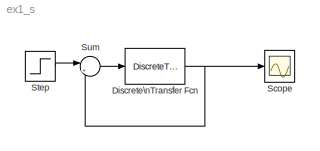
MODEL ex1_s
KIND model
BLOCK [DiscreteTransferFcn] Discrete\nTransfer Fcn
  Denominator = d
  InputPortMap = u0
  Numerator = n
  Ports = [1, 1]
  SID = 3
  SampleTime = Te
BLOCK [Scope] Scope
  DataFormat = StructureWithTime
  Floating = off
  NumInputPorts = 1
  Ports = [1]
  SID = 4
  SampleTime = 0
  ShowLegends = off
BLOCK [Step] Step
  SID = 2
  SampleTime = 0
BLOCK [Sum] Sum
  IconShape = round
  InputSameDT = off
  Inputs = |+-
  OutDataTypeStr = Inherit: Inherit via internal rule
  Ports = [2, 1]
  SID = 5
  SaturateOnIntegerOverflow = off
NET Discrete\nTransfer Fcn:1 -> Scope:1, Sum:2
LINE Step:1 -> Sum:1
LINE Sum:1 -> Discrete\nTransfer Fcn:1
note: NET lines group one-source signal fan-out (src -> all destinations, sorted); 1:1 wires keep LINE
